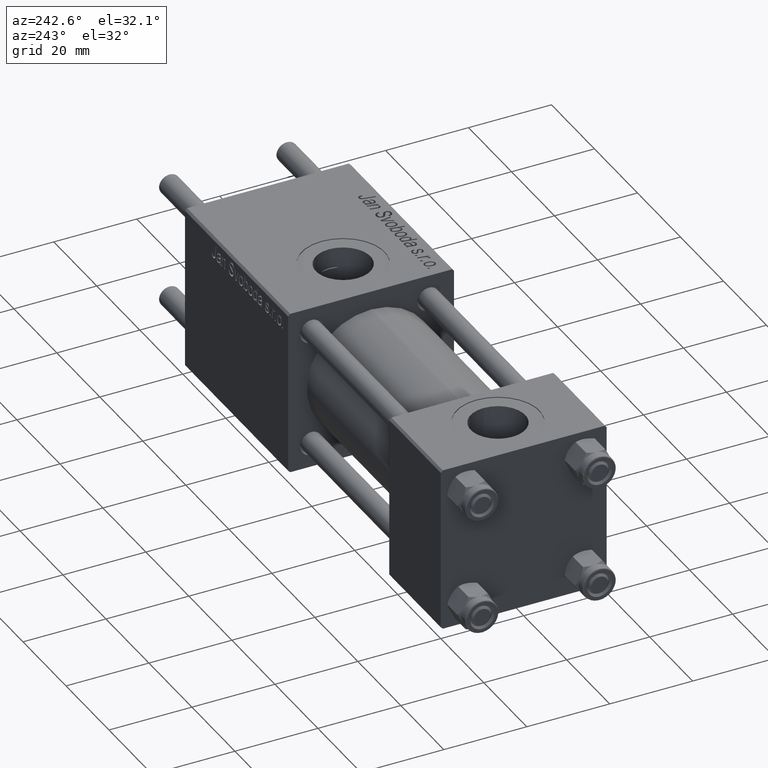
[diagram: clean part render]
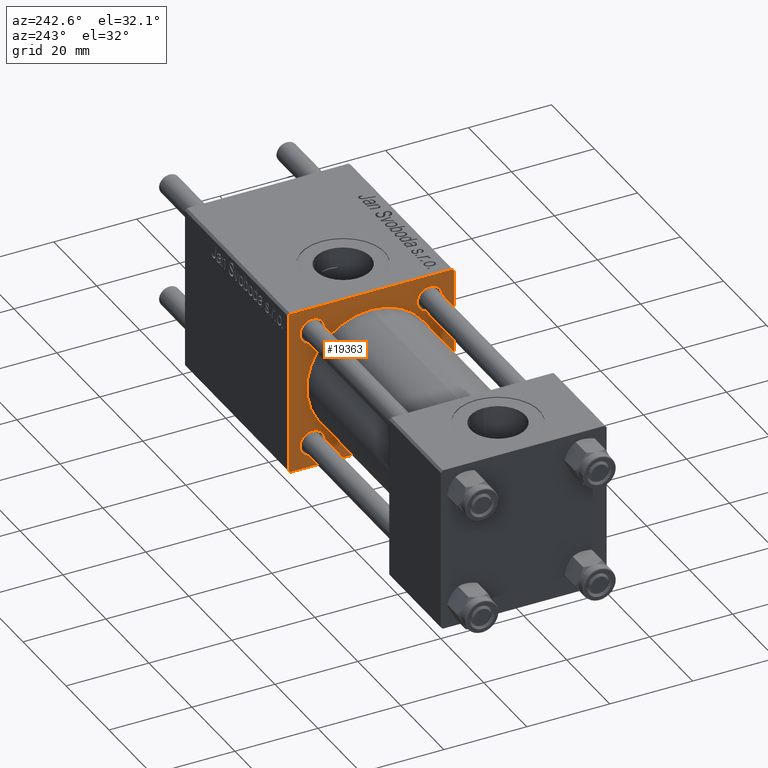
[diagram: same view with one face highlighted and labeled with its STEP entity id]
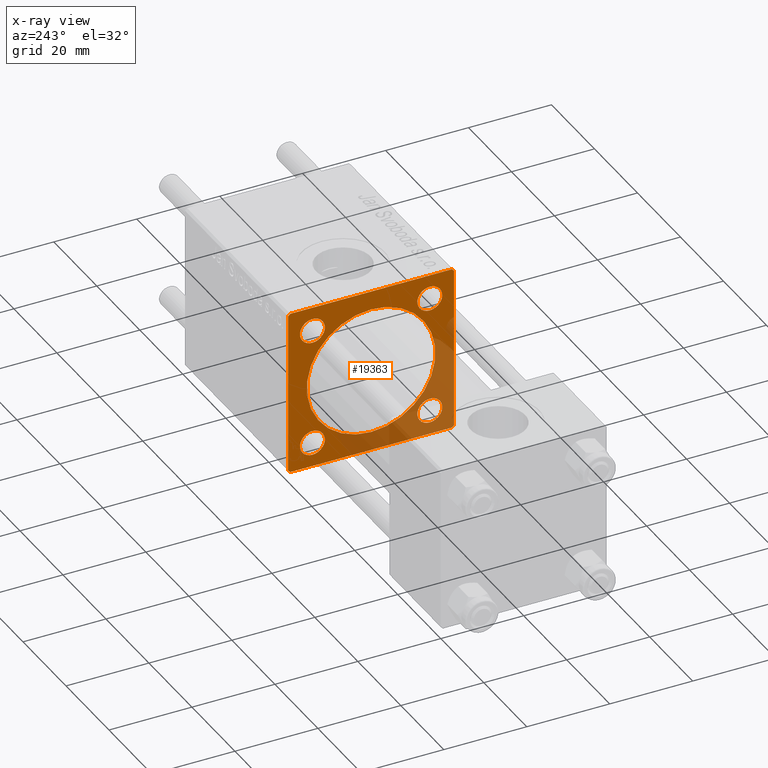
[diagram: x-ray of the same camera — body ghosted, the highlighted face saturated]
A machine part, auxiliary view. The second image highlights one B-rep face of the part: STEP entity #19363.
The next image is the same camera in x-ray: the body ghosted, the highlighted face saturated — about 32% of this face is hidden behind the body in this view.
In plain terms, the highlighted planar face has unit normal (-1, 0, 0).
Its self-contained STEP definition (entity closure, byte-faithful):
#169 = EDGE_LOOP ( 'NONE', ( #42126, #6512 ) ) ;
#364 = DIRECTION ( 'NONE',  ( 0.000000000000000000, 0.000000000000000000, 1.000000000000000000 ) ) ;
#595 = CARTESIAN_POINT ( 'NONE',  ( 71.00000000000001421, -14.15000000000000036, 11.14999999999999858 ) ) ;
#901 = CARTESIAN_POINT ( 'NONE',  ( 71.00000000000001421, -14.15000000000000036, -17.14999999999997726 ) ) ;
#939 = PLANE ( 'NONE',  #2058 ) ;
#1225 = CARTESIAN_POINT ( 'NONE',  ( 71.00000000000001421, -20.00000000000000355, 19.99999999999999645 ) ) ;
#1258 = CARTESIAN_POINT ( 'NONE',  ( 71.00000000000001421, -14.15000000000000036, -14.15000000000000036 ) ) ;
#1972 = VERTEX_POINT ( 'NONE', #901 ) ;
#2058 = AXIS2_PLACEMENT_3D ( 'NONE', #14973, #10398, #18431 ) ;
#2488 = VERTEX_POINT ( 'NONE', #38731 ) ;
#2859 = CARTESIAN_POINT ( 'NONE',  ( 71.00000000000001421, -19.74999999999973710, 19.75000000000028422 ) ) ;
#3006 = CARTESIAN_POINT ( 'NONE',  ( 71.00000000000001421, 14.15000000000000036, -14.15000000000000036 ) ) ;
#3119 = CARTESIAN_POINT ( 'NONE',  ( 71.00000000000001421, 19.99999999999999645, 20.00000000000000000 ) ) ;
#3285 = DIRECTION ( 'NONE',  ( 1.000000000000000000, 0.000000000000000000, 0.000000000000000000 ) ) ;
#4287 = CIRCLE ( 'NONE', #41901, 2.999999999999976463 ) ;
#4513 = EDGE_CURVE ( 'NONE', #12145, #20303, #54959, .T. ) ;
#5515 = CARTESIAN_POINT ( 'NONE',  ( 71.00000000000001421, -14.15000000000000036, 14.15000000000000036 ) ) ;
#6012 = CIRCLE ( 'NONE', #45425, 2.999999999999976463 ) ;
#6082 = DIRECTION ( 'NONE',  ( -0.000000000000000000, 0.7071067811865573427, 0.7071067811865376918 ) ) ;
#6469 = VERTEX_POINT ( 'NONE', #55513 ) ;
#6474 = DIRECTION ( 'NONE',  ( 0.000000000000000000, 0.000000000000000000, 1.000000000000000000 ) ) ;
#6512 = ORIENTED_EDGE ( 'NONE', *, *, #4513, .T. ) ;
#6716 = CARTESIAN_POINT ( 'NONE',  ( 71.00000000000001421, 14.15000000000000036, 14.15000000000000036 ) ) ;
#7077 = ORIENTED_EDGE ( 'NONE', *, *, #26921, .T. ) ;
#7955 = CIRCLE ( 'NONE', #17157, 15.50000000000000000 ) ;
#8408 = EDGE_CURVE ( 'NONE', #15133, #26581, #50490, .T. ) ;
#8894 = DIRECTION ( 'NONE',  ( 0.000000000000000000, 0.000000000000000000, 1.000000000000000000 ) ) ;
#9124 = ORIENTED_EDGE ( 'NONE', *, *, #44102, .F. ) ;
#9244 = EDGE_CURVE ( 'NONE', #13882, #52426, #21620, .T. ) ;
#9285 = CARTESIAN_POINT ( 'NONE',  ( 71.00000000000001421, -20.00000000000000355, 19.50000000000002487 ) ) ;
#9306 = EDGE_CURVE ( 'NONE', #40784, #20945, #27612, .T. ) ;
#9737 = DIRECTION ( 'NONE',  ( 0.000000000000000000, -0.7071067811865376918, 0.7071067811865574537 ) ) ;
#9828 = FACE_BOUND ( 'NONE', #23677, .T. ) ;
#10284 = CARTESIAN_POINT ( 'NONE',  ( 71.00000000000001421, -7.038826752868131828E-16, -15.50000000000000000 ) ) ;
#10398 = DIRECTION ( 'NONE',  ( -1.000000000000000000, 0.000000000000000000, -0.000000000000000000 ) ) ;
#10953 = EDGE_LOOP ( 'NONE', ( #31347, #47281 ) ) ;
#11397 = ORIENTED_EDGE ( 'NONE', *, *, #21626, .T. ) ;
#12011 = DIRECTION ( 'NONE',  ( 0.000000000000000000, -1.000000000000000000, -8.673617379884035472E-17 ) ) ;
#12145 = VERTEX_POINT ( 'NONE', #595 ) ;
#12258 = ORIENTED_EDGE ( 'NONE', *, *, #26170, .T. ) ;
#12448 = DIRECTION ( 'NONE',  ( 0.000000000000000000, 0.000000000000000000, 1.000000000000000000 ) ) ;
#12925 = VERTEX_POINT ( 'NONE', #16992 ) ;
#12967 = CARTESIAN_POINT ( 'NONE',  ( 71.00000000000001421, -14.15000000000000036, -11.15000000000002522 ) ) ;
#13722 = ORIENTED_EDGE ( 'NONE', *, *, #49026, .T. ) ;
#13800 = AXIS2_PLACEMENT_3D ( 'NONE', #51202, #20489, #47181 ) ;
#13856 = CARTESIAN_POINT ( 'NONE',  ( 71.00000000000001421, 19.74999999999971578, 19.75000000000026290 ) ) ;
#13882 = VERTEX_POINT ( 'NONE', #17837 ) ;
#14063 = EDGE_CURVE ( 'NONE', #25229, #2488, #49707, .T. ) ;
#14159 = DIRECTION ( 'NONE',  ( 1.000000000000000000, 0.000000000000000000, 0.000000000000000000 ) ) ;
#14495 = CARTESIAN_POINT ( 'NONE',  ( 71.00000000000001421, 19.99999999999999645, -19.50000000000000000 ) ) ;
#14605 = CARTESIAN_POINT ( 'NONE',  ( 71.00000000000001421, 14.15000000000000036, -14.15000000000000036 ) ) ;
#14858 = ORIENTED_EDGE ( 'NONE', *, *, #14063, .T. ) ;
#14902 = CARTESIAN_POINT ( 'NONE',  ( 71.00000000000001421, -20.00000000000000000, -19.50000000000001066 ) ) ;
#14973 = CARTESIAN_POINT ( 'NONE',  ( 71.00000000000001421, 0.000000000000000000, 0.000000000000000000 ) ) ;
#15133 = VERTEX_POINT ( 'NONE', #10284 ) ;
#15152 = ORIENTED_EDGE ( 'NONE', *, *, #30381, .T. ) ;
#15645 = DIRECTION ( 'NONE',  ( 1.000000000000000000, 0.000000000000000000, 0.000000000000000000 ) ) ;
#15749 = LINE ( 'NONE', #52473, #56339 ) ;
#16336 = VECTOR ( 'NONE', #9737, 999.9999999999998863 ) ;
#16992 = CARTESIAN_POINT ( 'NONE',  ( 71.00000000000001421, 19.49999999999999645, -20.00000000000000000 ) ) ;
#17157 = AXIS2_PLACEMENT_3D ( 'NONE', #27937, #44594, #31971 ) ;
#17837 = CARTESIAN_POINT ( 'NONE',  ( 71.00000000000001421, 19.99999999999999645, 19.49999999999998579 ) ) ;
#18079 = DIRECTION ( 'NONE',  ( 1.000000000000000000, 0.000000000000000000, 0.000000000000000000 ) ) ;
#18120 = EDGE_CURVE ( 'NONE', #52426, #12925, #20044, .T. ) ;
#18431 = DIRECTION ( 'NONE',  ( -0.000000000000000000, 0.000000000000000000, 1.000000000000000000 ) ) ;
#19363 = ADVANCED_FACE ( 'NONE', ( #49142, #39956, #49996, #9828, #44842, #22745 ), #939, .T. ) ;
#19847 = CARTESIAN_POINT ( 'NONE',  ( 71.00000000000001421, -2.602085213965210642E-15, 15.50000000000000000 ) ) ;
#20044 = LINE ( 'NONE', #29811, #49702 ) ;
#20303 = VERTEX_POINT ( 'NONE', #45606 ) ;
#20489 = DIRECTION ( 'NONE',  ( 1.000000000000000000, 0.000000000000000000, 0.000000000000000000 ) ) ;
#20768 = DIRECTION ( 'NONE',  ( 1.000000000000000000, 0.000000000000000000, 0.000000000000000000 ) ) ;
#20945 = VERTEX_POINT ( 'NONE', #14902 ) ;
#21620 = LINE ( 'NONE', #38857, #48640 ) ;
#21626 = EDGE_CURVE ( 'NONE', #1972, #34371, #33287, .T. ) ;
#22745 = FACE_OUTER_BOUND ( 'NONE', #55457, .T. ) ;
#23677 = EDGE_LOOP ( 'NONE', ( #49257, #11397 ) ) ;
#24186 = DIRECTION ( 'NONE',  ( 0.000000000000000000, 0.7071067811865574537, -0.7071067811865376918 ) ) ;
#24673 = LINE ( 'NONE', #2859, #28972 ) ;
#24999 = VERTEX_POINT ( 'NONE', #28076 ) ;
#25108 = DIRECTION ( 'NONE',  ( 0.000000000000000000, 0.000000000000000000, -1.000000000000000000 ) ) ;
#25229 = VERTEX_POINT ( 'NONE', #34665 ) ;
#26024 = CARTESIAN_POINT ( 'NONE',  ( 71.00000000000001421, -19.50000000000002487, -20.00000000000000000 ) ) ;
#26073 = DIRECTION ( 'NONE',  ( 0.000000000000000000, -1.000000000000000000, 0.000000000000000000 ) ) ;
#26170 = EDGE_CURVE ( 'NONE', #2488, #25229, #41624, .T. ) ;
#26581 = VERTEX_POINT ( 'NONE', #19847 ) ;
#26760 = DIRECTION ( 'NONE',  ( 0.000000000000000000, 8.673617379884036705E-17, -1.000000000000000000 ) ) ;
#26872 = EDGE_LOOP ( 'NONE', ( #14858, #12258 ) ) ;
#26921 = EDGE_CURVE ( 'NONE', #12925, #52291, #15749, .T. ) ;
#27612 = LINE ( 'NONE', #1225, #41309 ) ;
#27804 = LINE ( 'NONE', #36436, #16336 ) ;
#27937 = CARTESIAN_POINT ( 'NONE',  ( 71.00000000000001421, -2.602085213965210642E-15, 0.000000000000000000 ) ) ;
#28076 = CARTESIAN_POINT ( 'NONE',  ( 71.00000000000001421, 19.49999999999996803, 20.00000000000000000 ) ) ;
#28272 = ORIENTED_EDGE ( 'NONE', *, *, #30060, .T. ) ;
#28281 = CARTESIAN_POINT ( 'NONE',  ( 71.00000000000001421, -14.15000000000000036, 14.15000000000000036 ) ) ;
#28972 = VECTOR ( 'NONE', #6082, 1000.000000000000114 ) ;
#29209 = EDGE_CURVE ( 'NONE', #6469, #32699, #6012, .T. ) ;
#29811 = CARTESIAN_POINT ( 'NONE',  ( 71.00000000000001421, 19.74999999999999645, -19.74999999999999645 ) ) ;
#30060 = EDGE_CURVE ( 'NONE', #32699, #6469, #51877, .T. ) ;
#30381 = EDGE_CURVE ( 'NONE', #40784, #37051, #24673, .T. ) ;
#30811 = ORIENTED_EDGE ( 'NONE', *, *, #39417, .T. ) ;
#30876 = CIRCLE ( 'NONE', #38236, 3.000000000000004441 ) ;
#31005 = DIRECTION ( 'NONE',  ( 0.000000000000000000, 0.000000000000000000, 1.000000000000000000 ) ) ;
#31347 = ORIENTED_EDGE ( 'NONE', *, *, #32913, .T. ) ;
#31958 = DIRECTION ( 'NONE',  ( 0.000000000000000000, 0.000000000000000000, 1.000000000000000000 ) ) ;
#31971 = DIRECTION ( 'NONE',  ( 0.000000000000000000, 0.000000000000000000, -1.000000000000000000 ) ) ;
#32130 = DIRECTION ( 'NONE',  ( 1.000000000000000000, 0.000000000000000000, 0.000000000000000000 ) ) ;
#32699 = VERTEX_POINT ( 'NONE', #33183 ) ;
#32913 = EDGE_CURVE ( 'NONE', #26581, #15133, #7955, .T. ) ;
#33183 = CARTESIAN_POINT ( 'NONE',  ( 71.00000000000001421, 14.15000000000000036, -17.14999999999997726 ) ) ;
#33287 = CIRCLE ( 'NONE', #37878, 2.999999999999976463 ) ;
#34371 = VERTEX_POINT ( 'NONE', #12967 ) ;
#34665 = CARTESIAN_POINT ( 'NONE',  ( 71.00000000000001421, 14.15000000000000036, 17.15000000000000568 ) ) ;
#35498 = CARTESIAN_POINT ( 'NONE',  ( 71.00000000000001421, -19.50000000000001776, 19.99999999999999645 ) ) ;
#36436 = CARTESIAN_POINT ( 'NONE',  ( 71.00000000000001421, -19.75000000000028066, -19.74999999999973355 ) ) ;
#37051 = VERTEX_POINT ( 'NONE', #35498 ) ;
#37878 = AXIS2_PLACEMENT_3D ( 'NONE', #44211, #18079, #31005 ) ;
#37924 = DIRECTION ( 'NONE',  ( 1.000000000000000000, 0.000000000000000000, 0.000000000000000000 ) ) ;
#38236 = AXIS2_PLACEMENT_3D ( 'NONE', #5515, #48573, #364 ) ;
#38569 = DIRECTION ( 'NONE',  ( 0.000000000000000000, 0.000000000000000000, 1.000000000000000000 ) ) ;
#38731 = CARTESIAN_POINT ( 'NONE',  ( 71.00000000000001421, 14.15000000000000036, 11.14999999999999858 ) ) ;
#38857 = CARTESIAN_POINT ( 'NONE',  ( 71.00000000000001421, 19.99999999999999645, 20.00000000000000000 ) ) ;
#39374 = AXIS2_PLACEMENT_3D ( 'NONE', #28281, #15645, #6474 ) ;
#39417 = EDGE_CURVE ( 'NONE', #24999, #13882, #53181, .T. ) ;
#39956 = FACE_BOUND ( 'NONE', #26872, .T. ) ;
#40784 = VERTEX_POINT ( 'NONE', #9285 ) ;
#40850 = ORIENTED_EDGE ( 'NONE', *, *, #9244, .T. ) ;
#40873 = EDGE_CURVE ( 'NONE', #34371, #1972, #4287, .T. ) ;
#41173 = ORIENTED_EDGE ( 'NONE', *, *, #29209, .T. ) ;
#41251 = EDGE_CURVE ( 'NONE', #20303, #12145, #30876, .T. ) ;
#41309 = VECTOR ( 'NONE', #26760, 1000.000000000000000 ) ;
#41624 = CIRCLE ( 'NONE', #43465, 3.000000000000000888 ) ;
#41901 = AXIS2_PLACEMENT_3D ( 'NONE', #1258, #14159, #31958 ) ;
#42126 = ORIENTED_EDGE ( 'NONE', *, *, #41251, .T. ) ;
#42138 = DIRECTION ( 'NONE',  ( -0.000000000000000000, -0.7071067811865474617, -0.7071067811865474617 ) ) ;
#43465 = AXIS2_PLACEMENT_3D ( 'NONE', #6716, #20768, #38569 ) ;
#44102 = EDGE_CURVE ( 'NONE', #24999, #37051, #55910, .T. ) ;
#44211 = CARTESIAN_POINT ( 'NONE',  ( 71.00000000000001421, -14.15000000000000036, -14.15000000000000036 ) ) ;
#44594 = DIRECTION ( 'NONE',  ( 1.000000000000000000, 0.000000000000000000, 0.000000000000000000 ) ) ;
#44842 = FACE_BOUND ( 'NONE', #10953, .T. ) ;
#45425 = AXIS2_PLACEMENT_3D ( 'NONE', #14605, #32130, #8894 ) ;
#45606 = CARTESIAN_POINT ( 'NONE',  ( 71.00000000000001421, -14.15000000000000036, 17.15000000000000568 ) ) ;
#46821 = CARTESIAN_POINT ( 'NONE',  ( 71.00000000000001421, 14.15000000000000036, 14.15000000000000036 ) ) ;
#47181 = DIRECTION ( 'NONE',  ( 0.000000000000000000, 0.000000000000000000, -1.000000000000000000 ) ) ;
#47281 = ORIENTED_EDGE ( 'NONE', *, *, #8408, .T. ) ;
#48414 = VECTOR ( 'NONE', #12011, 1000.000000000000000 ) ;
#48573 = DIRECTION ( 'NONE',  ( 1.000000000000000000, 0.000000000000000000, 0.000000000000000000 ) ) ;
#48640 = VECTOR ( 'NONE', #25108, 1000.000000000000000 ) ;
#49026 = EDGE_CURVE ( 'NONE', #52291, #20945, #27804, .T. ) ;
#49142 = FACE_BOUND ( 'NONE', #169, .T. ) ;
#49257 = ORIENTED_EDGE ( 'NONE', *, *, #40873, .T. ) ;
#49702 = VECTOR ( 'NONE', #42138, 1000.000000000000114 ) ;
#49707 = CIRCLE ( 'NONE', #55202, 3.000000000000000888 ) ;
#49996 = FACE_BOUND ( 'NONE', #55340, .T. ) ;
#50019 = AXIS2_PLACEMENT_3D ( 'NONE', #3006, #3285, #12448 ) ;
#50490 = CIRCLE ( 'NONE', #13800, 15.50000000000000000 ) ;
#51202 = CARTESIAN_POINT ( 'NONE',  ( 71.00000000000001421, -2.602085213965210642E-15, 0.000000000000000000 ) ) ;
#51877 = CIRCLE ( 'NONE', #50019, 2.999999999999976463 ) ;
#52291 = VERTEX_POINT ( 'NONE', #26024 ) ;
#52426 = VERTEX_POINT ( 'NONE', #14495 ) ;
#52473 = CARTESIAN_POINT ( 'NONE',  ( 71.00000000000001421, 19.99999999999999645, -20.00000000000000000 ) ) ;
#53181 = LINE ( 'NONE', #13856, #53930 ) ;
#53930 = VECTOR ( 'NONE', #24186, 999.9999999999998863 ) ;
#54959 = CIRCLE ( 'NONE', #39374, 3.000000000000004441 ) ;
#55202 = AXIS2_PLACEMENT_3D ( 'NONE', #46821, #37924, #55424 ) ;
#55245 = ORIENTED_EDGE ( 'NONE', *, *, #18120, .T. ) ;
#55340 = EDGE_LOOP ( 'NONE', ( #41173, #28272 ) ) ;
#55405 = ORIENTED_EDGE ( 'NONE', *, *, #9306, .F. ) ;
#55424 = DIRECTION ( 'NONE',  ( 0.000000000000000000, 0.000000000000000000, 1.000000000000000000 ) ) ;
#55457 = EDGE_LOOP ( 'NONE', ( #7077, #13722, #55405, #15152, #9124, #30811, #40850, #55245 ) ) ;
#55513 = CARTESIAN_POINT ( 'NONE',  ( 71.00000000000001421, 14.15000000000000036, -11.15000000000002522 ) ) ;
#55910 = LINE ( 'NONE', #3119, #48414 ) ;
#56339 = VECTOR ( 'NONE', #26073, 1000.000000000000000 ) ;